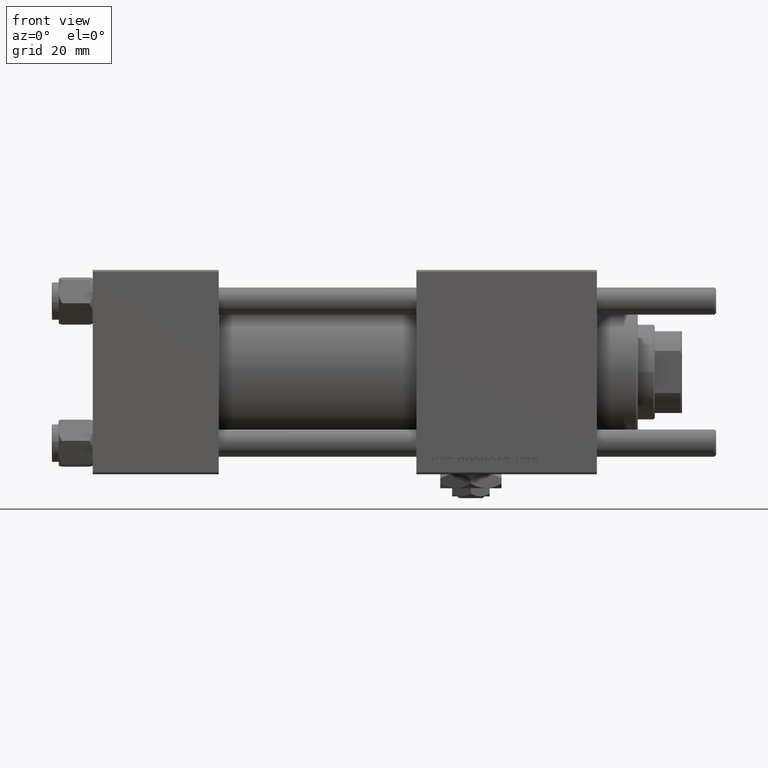
[diagram: clean part render]
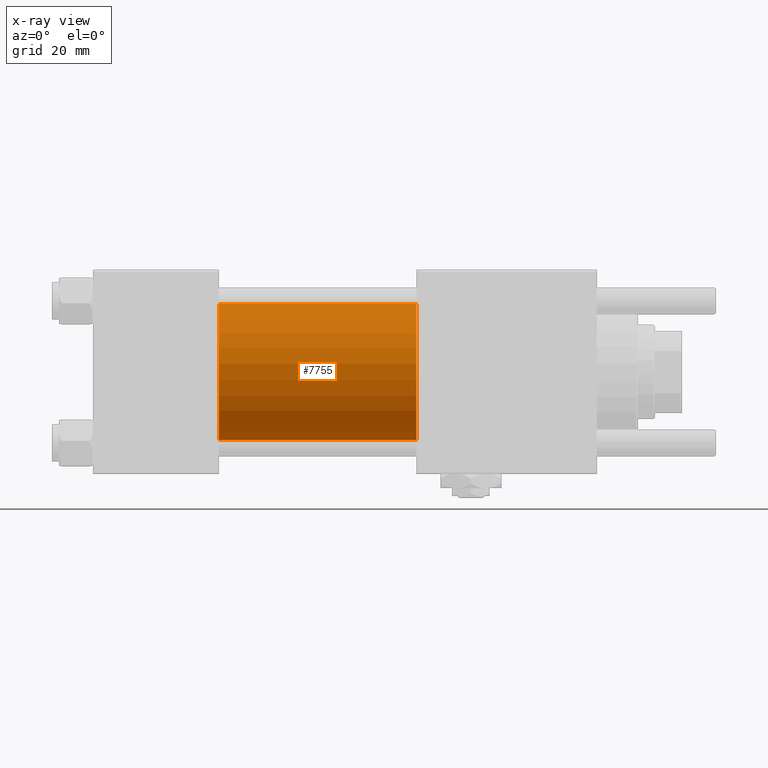
[diagram: x-ray — body ghosted, one internal face saturated and labeled with its STEP entity id]
A machine part, front view, then the same camera in x-ray: the body is ghosted and one INTERNAL B-rep face — a face not visible from any outside direction — is saturated and labeled: STEP entity #7755.
In plain terms, the highlighted cylindrical surface (partial cylindrical patch) has radius 20 mm, axis along (-1, -0, -0).
Its self-contained STEP definition (entity closure, byte-faithful):
#127 = ORIENTED_EDGE ( 'NONE', *, *, #19300, .F. ) ;
#642 = ORIENTED_EDGE ( 'NONE', *, *, #16037, .T. ) ;
#2523 = EDGE_LOOP ( 'NONE', ( #23591, #642, #127, #47468 ) ) ;
#5212 = LINE ( 'NONE', #51101, #43494 ) ;
#5498 = DIRECTION ( 'NONE',  ( -1.000000000000000000, -0.000000000000000000, -0.000000000000000000 ) ) ;
#6406 = DIRECTION ( 'NONE',  ( -1.000000000000000000, -0.000000000000000000, -0.000000000000000000 ) ) ;
#7755 = ADVANCED_FACE ( 'NONE', ( #10559 ), #42548, .F. ) ;
#8206 = CARTESIAN_POINT ( 'NONE',  ( 95.00000000000000000, -1.527916156705046464E-16, -20.00000000000000000 ) ) ;
#10470 = VERTEX_POINT ( 'NONE', #8206 ) ;
#10559 = FACE_OUTER_BOUND ( 'NONE', #2523, .T. ) ;
#11658 = DIRECTION ( 'NONE',  ( 1.000000000000000000, 0.000000000000000000, 0.000000000000000000 ) ) ;
#12755 = DIRECTION ( 'NONE',  ( -1.000000000000000000, -0.000000000000000000, -0.000000000000000000 ) ) ;
#13334 = LINE ( 'NONE', #57435, #57249 ) ;
#14239 = AXIS2_PLACEMENT_3D ( 'NONE', #34925, #14453, #41115 ) ;
#14331 = VERTEX_POINT ( 'NONE', #50661 ) ;
#14453 = DIRECTION ( 'NONE',  ( 1.000000000000000000, 0.000000000000000000, 0.000000000000000000 ) ) ;
#15843 = VERTEX_POINT ( 'NONE', #22940 ) ;
#16037 = EDGE_CURVE ( 'NONE', #10470, #46170, #13334, .T. ) ;
#19300 = EDGE_CURVE ( 'NONE', #15843, #46170, #19524, .T. ) ;
#19524 = CIRCLE ( 'NONE', #40344, 20.00000000000000000 ) ;
#19680 = CARTESIAN_POINT ( 'NONE',  ( 37.00000000000000000, -1.527916156705046464E-16, -20.00000000000000000 ) ) ;
#22940 = CARTESIAN_POINT ( 'NONE',  ( 37.00000000000000000, -2.602085213965210642E-15, 20.00000000000000000 ) ) ;
#23591 = ORIENTED_EDGE ( 'NONE', *, *, #51399, .T. ) ;
#28015 = EDGE_CURVE ( 'NONE', #14331, #15843, #5212, .T. ) ;
#29452 = CARTESIAN_POINT ( 'NONE',  ( 37.00000000000000000, -2.602085213965210642E-15, 0.000000000000000000 ) ) ;
#30835 = DIRECTION ( 'NONE',  ( 0.000000000000000000, 0.000000000000000000, -1.000000000000000000 ) ) ;
#34925 = CARTESIAN_POINT ( 'NONE',  ( 95.00000000000000000, -2.602085213965210642E-15, 0.000000000000000000 ) ) ;
#40344 = AXIS2_PLACEMENT_3D ( 'NONE', #29452, #11658, #30835 ) ;
#41115 = DIRECTION ( 'NONE',  ( 0.000000000000000000, 0.000000000000000000, -1.000000000000000000 ) ) ;
#42548 = CYLINDRICAL_SURFACE ( 'NONE', #50567, 20.00000000000000000 ) ;
#43494 = VECTOR ( 'NONE', #5498, 1000.000000000000000 ) ;
#46170 = VERTEX_POINT ( 'NONE', #19680 ) ;
#46700 = DIRECTION ( 'NONE',  ( 0.000000000000000000, 0.000000000000000000, 1.000000000000000000 ) ) ;
#47468 = ORIENTED_EDGE ( 'NONE', *, *, #28015, .F. ) ;
#49240 = CIRCLE ( 'NONE', #14239, 20.00000000000000000 ) ;
#50567 = AXIS2_PLACEMENT_3D ( 'NONE', #52007, #6406, #46700 ) ;
#50661 = CARTESIAN_POINT ( 'NONE',  ( 95.00000000000000000, -2.602085213965210642E-15, 20.00000000000000000 ) ) ;
#51101 = CARTESIAN_POINT ( 'NONE',  ( 95.00000000000000000, -2.602085213965210642E-15, 20.00000000000000000 ) ) ;
#51399 = EDGE_CURVE ( 'NONE', #14331, #10470, #49240, .T. ) ;
#52007 = CARTESIAN_POINT ( 'NONE',  ( 95.00000000000000000, -2.602085213965210642E-15, 0.000000000000000000 ) ) ;
#57249 = VECTOR ( 'NONE', #12755, 1000.000000000000000 ) ;
#57435 = CARTESIAN_POINT ( 'NONE',  ( 95.00000000000000000, -1.527916156705046464E-16, -20.00000000000000000 ) ) ;